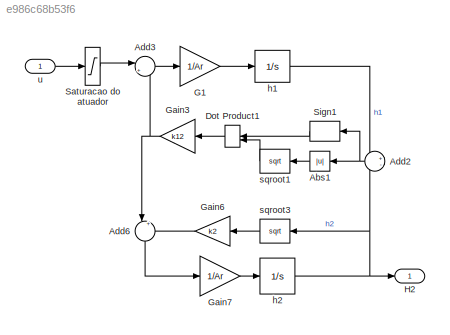
MODEL slx_e986c68b53f6
KIND model
CONFIG AbsTol = auto
CONFIG EnableMultiTasking = on
CONFIG FixedStep = auto
CONFIG MaxStep = auto
CONFIG MinStep = auto
CONFIG RelTol = 1e-3
CONFIG SampleTimeConstraint = Unconstrained
CONFIG Solver = ode45
CONFIG SolverName = ode45
CONFIG StartTime = 0.0
CONFIG StopTime = 10.0
BLOCK [Abs] Abs1
  SaturateOnIntegerOverflow = off
BLOCK [Sum] Add2
  IconShape = round
  InputSameDT = off
  Inputs = +-
  OutDataTypeStr = Inherit: Inherit via internal rule
  Ports = [2, 1]
  SaturateOnIntegerOverflow = off
BLOCK [Sum] Add3
  IconShape = round
  InputSameDT = off
  Inputs = |+-
  OutDataTypeStr = Inherit: Inherit via internal rule
  Ports = [2, 1]
  SaturateOnIntegerOverflow = off
BLOCK [Sum] Add6
  IconShape = round
  InputSameDT = off
  Inputs = |+-
  OutDataTypeStr = Inherit: Inherit via internal rule
  Ports = [2, 1]
  SaturateOnIntegerOverflow = off
BLOCK [DotProduct] Dot Product1
  OutDataTypeStr = Inherit: Inherit via internal rule
BLOCK [Gain] G1
  Gain = 1/Ar
  OutDataTypeStr = Inherit: Inherit via internal rule
  ParamDataTypeStr = Inherit: Inherit via internal rule
  SaturateOnIntegerOverflow = off
BLOCK [Gain] Gain3
  Gain = k12
  OutDataTypeStr = Inherit: Inherit via internal rule
  ParamDataTypeStr = Inherit: Inherit via internal rule
  SaturateOnIntegerOverflow = off
BLOCK [Gain] Gain6
  Gain = k2
  OutDataTypeStr = Inherit: Inherit via internal rule
  ParamDataTypeStr = Inherit: Inherit via internal rule
  SaturateOnIntegerOverflow = off
BLOCK [Gain] Gain7
  Gain = 1/Ar
  OutDataTypeStr = Inherit: Inherit via internal rule
  ParamDataTypeStr = Inherit: Inherit via internal rule
  SaturateOnIntegerOverflow = off
BLOCK [Outport] H2
  IconDisplay = Port number
BLOCK [Saturate] Saturacao do atuador
  InputPortMap = u0
  LowerLimit = qmin
  Ports = [1, 1]
  UpperLimit = qmax
BLOCK [Signum] Sign1
BLOCK [Integrator] h1
  LimitOutput = on
  LowerSaturationLimit = 0
  Ports = [1, 1]
  UpperSaturationLimit = hmax
BLOCK [Integrator] h2
  LimitOutput = on
  LowerSaturationLimit = 0
  Ports = [1, 1]
  UpperSaturationLimit = hmax
BLOCK [Math] sqroot1
  Operator = sqrt
  Ports = [1, 1]
BLOCK [Math] sqroot3
  Operator = sqrt
  Ports = [1, 1]
BLOCK [Inport] u
  IconDisplay = Port number
LINE Abs1:1 -> sqroot1:1
NET Add2:1 -> Abs1:1, Sign1:1
LINE Add3:1 -> G1:1
LINE Add6:1 -> Gain7:1
LINE Dot Product1:1 -> Gain3:1
LINE G1:1 -> h1:1
NET Gain3:1 -> Add3:2, Add6:1
LINE Gain6:1 -> Add6:2
LINE Gain7:1 -> h2:1
LINE Saturacao do atuador:1 -> Add3:1
LINE Sign1:1 -> Dot Product1:1
LINE h1:1 -> Add2:1
NET h2:1 -> Add2:2, H2:1, sqroot3:1
LINE sqroot1:1 -> Dot Product1:2
LINE sqroot3:1 -> Gain6:1
LINE u:1 -> Saturacao do atuador:1
note: NET lines group one-source signal fan-out (src -> all destinations, sorted); 1:1 wires keep LINE
